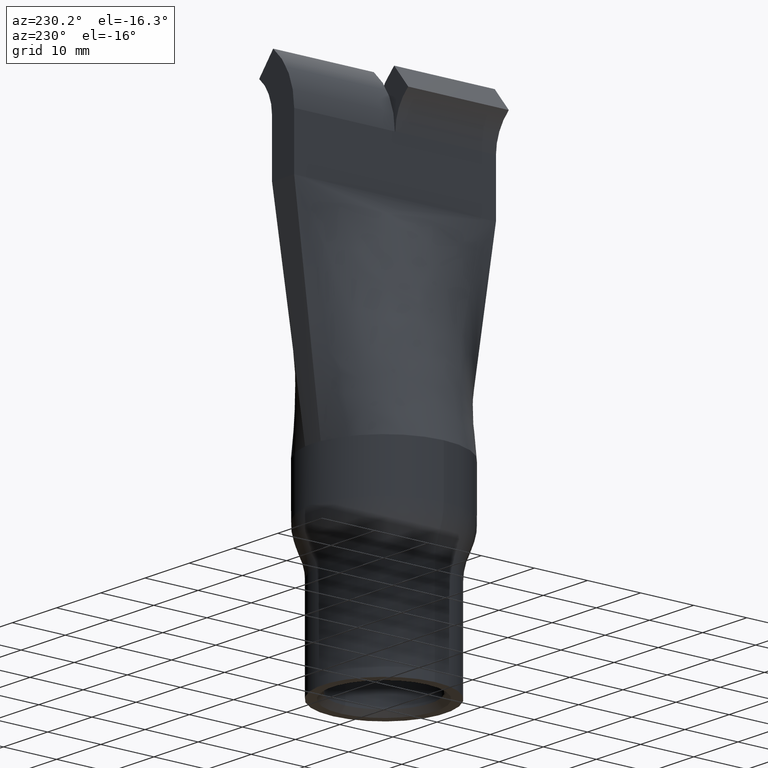
[diagram: clean part render]
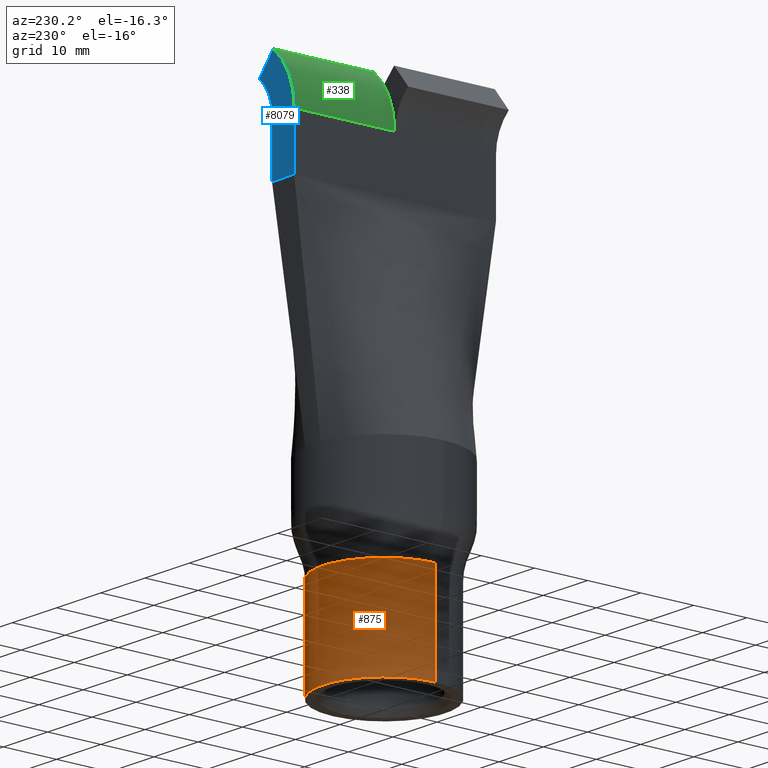
[diagram: same view with three faces highlighted in distinct colors, each labeled with its STEP entity id]
A machine part, auxiliary view with three faces highlighted in distinct colors.
Their STEP definitions:

[orange] entity #875 — the highlighted cylindrical surface (partial cylindrical patch) has radius 11.5 mm, axis along (-0, -0, -1).
#562 = CARTESIAN_POINT ( 'NONE',  ( 11.50000000000000000, 1.408343819019456200E-015, 0.0000000000000000000 ) ) ;
#875 = ADVANCED_FACE ( 'NONE', ( #7269 ), #3598, .T. ) ;
#1039 = CARTESIAN_POINT ( 'NONE',  ( -11.50000000000000000, 0.0000000000000000000, 0.0000000000000000000 ) ) ;
#1429 = VERTEX_POINT ( 'NONE', #1039 ) ;
#1825 = ORIENTED_EDGE ( 'NONE', *, *, #11472, .T. ) ;
#1852 = ORIENTED_EDGE ( 'NONE', *, *, #3597, .F. ) ;
#2644 = ORIENTED_EDGE ( 'NONE', *, *, #4210, .T. ) ;
#2754 = CARTESIAN_POINT ( 'NONE',  ( -11.50000000000000000, 0.0000000000000000000, 18.00000000000000000 ) ) ;
#2833 = DIRECTION ( 'NONE',  ( 0.0000000000000000000, 0.0000000000000000000, 1.000000000000000000 ) ) ;
#2884 = DIRECTION ( 'NONE',  ( 1.000000000000000000, 0.0000000000000000000, 0.0000000000000000000 ) ) ;
#2898 = CARTESIAN_POINT ( 'NONE',  ( 0.0000000000000000000, 0.0000000000000000000, 18.00000000000000000 ) ) ;
#3597 = EDGE_CURVE ( 'NONE', #5290, #1429, #13036, .T. ) ;
#3598 = CYLINDRICAL_SURFACE ( 'NONE', #13029, 11.50000000000000000 ) ;
#4210 = EDGE_CURVE ( 'NONE', #5290, #6960, #4705, .T. ) ;
#4429 = DIRECTION ( 'NONE',  ( -1.000000000000000000, 0.0000000000000000000, 0.0000000000000000000 ) ) ;
#4705 = CIRCLE ( 'NONE', #13056, 11.50000000000000000 ) ;
#5290 = VERTEX_POINT ( 'NONE', #2754 ) ;
#5613 = EDGE_LOOP ( 'NONE', ( #2644, #1825, #14954, #1852 ) ) ;
#6514 = DIRECTION ( 'NONE',  ( -0.0000000000000000000, -0.0000000000000000000, -1.000000000000000000 ) ) ;
#6681 = CARTESIAN_POINT ( 'NONE',  ( 0.0000000000000000000, 0.0000000000000000000, 24.00000000000000000 ) ) ;
#6960 = VERTEX_POINT ( 'NONE', #11894 ) ;
#7171 = CARTESIAN_POINT ( 'NONE',  ( 11.50000000000000000, 1.408343819019456200E-015, 24.00000000000000000 ) ) ;
#7269 = FACE_OUTER_BOUND ( 'NONE', #5613, .T. ) ;
#8472 = DIRECTION ( 'NONE',  ( -0.0000000000000000000, -0.0000000000000000000, -1.000000000000000000 ) ) ;
#8810 = VERTEX_POINT ( 'NONE', #562 ) ;
#9182 = DIRECTION ( 'NONE',  ( 1.000000000000000000, 0.0000000000000000000, 0.0000000000000000000 ) ) ;
#9630 = CARTESIAN_POINT ( 'NONE',  ( -11.50000000000000000, 0.0000000000000000000, 24.00000000000000000 ) ) ;
#9837 = DIRECTION ( 'NONE',  ( -0.0000000000000000000, -0.0000000000000000000, -1.000000000000000000 ) ) ;
#11472 = EDGE_CURVE ( 'NONE', #6960, #8810, #11603, .T. ) ;
#11553 = CARTESIAN_POINT ( 'NONE',  ( 0.0000000000000000000, 0.0000000000000000000, 0.0000000000000000000 ) ) ;
#11603 = LINE ( 'NONE', #7171, #12162 ) ;
#11673 = VECTOR ( 'NONE', #9837, 1000.000000000000000 ) ;
#11681 = EDGE_CURVE ( 'NONE', #8810, #1429, #12342, .T. ) ;
#11894 = CARTESIAN_POINT ( 'NONE',  ( 11.50000000000000000, 1.408343819019456200E-015, 18.00000000000000000 ) ) ;
#12162 = VECTOR ( 'NONE', #8472, 1000.000000000000000 ) ;
#12342 = CIRCLE ( 'NONE', #14536, 11.50000000000000000 ) ;
#12916 = DIRECTION ( 'NONE',  ( -0.0000000000000000000, -0.0000000000000000000, -1.000000000000000000 ) ) ;
#13029 = AXIS2_PLACEMENT_3D ( 'NONE', #6681, #12916, #4429 ) ;
#13036 = LINE ( 'NONE', #9630, #11673 ) ;
#13056 = AXIS2_PLACEMENT_3D ( 'NONE', #2898, #6514, #9182 ) ;
#14536 = AXIS2_PLACEMENT_3D ( 'NONE', #11553, #2833, #2884 ) ;
#14954 = ORIENTED_EDGE ( 'NONE', *, *, #11681, .T. ) ;

[blue] entity #8079 — the highlighted planar face has unit normal (0, -1, 0).
#72 = EDGE_CURVE ( 'NONE', #11219, #14656, #1862, .T. ) ;
#112 = CARTESIAN_POINT ( 'NONE',  ( 5.403782846609021600, 19.00000000000000400, 91.13189752409911600 ) ) ;
#271 = ORIENTED_EDGE ( 'NONE', *, *, #11660, .T. ) ;
#487 = CARTESIAN_POINT ( 'NONE',  ( 2.500000000000001800, 19.00000000000000400, 36.67246420652639200 ) ) ;
#1023 = DIRECTION ( 'NONE',  ( 1.000000000000000000, 0.0000000000000000000, 0.0000000000000000000 ) ) ;
#1305 = VERTEX_POINT ( 'NONE', #13048 ) ;
#1862 = LINE ( 'NONE', #10130, #11945 ) ;
#2151 = DIRECTION ( 'NONE',  ( 0.0000000000000000000, -1.000000000000000000, 0.0000000000000000000 ) ) ;
#2160 = CARTESIAN_POINT ( 'NONE',  ( -2.499999999999998200, 19.00000000000000400, 75.00000000000000000 ) ) ;
#2199 = AXIS2_PLACEMENT_3D ( 'NONE', #3343, #2151, #9555 ) ;
#2238 = ORIENTED_EDGE ( 'NONE', *, *, #14854, .F. ) ;
#2950 = LINE ( 'NONE', #2160, #9529 ) ;
#2966 = DIRECTION ( 'NONE',  ( -0.0000000000000000000, -0.0000000000000000000, 1.000000000000000000 ) ) ;
#3193 = EDGE_LOOP ( 'NONE', ( #15732, #6938, #11154, #2238, #4092, #271 ) ) ;
#3343 = CARTESIAN_POINT ( 'NONE',  ( -2.499999999999998200, 19.00000000000000400, 36.67246420652639200 ) ) ;
#3499 = VERTEX_POINT ( 'NONE', #112 ) ;
#4092 = ORIENTED_EDGE ( 'NONE', *, *, #7365, .F. ) ;
#4662 = DIRECTION ( 'NONE',  ( -0.6336490936431872200, 0.0000000000000000000, 0.7736205957219387500 ) ) ;
#5083 = LINE ( 'NONE', #487, #11106 ) ;
#5103 = AXIS2_PLACEMENT_3D ( 'NONE', #10284, #5258, #13913 ) ;
#5118 = VERTEX_POINT ( 'NONE', #7196 ) ;
#5258 = DIRECTION ( 'NONE',  ( -0.0000000000000000000, -1.000000000000000000, -0.0000000000000000000 ) ) ;
#5435 = DIRECTION ( 'NONE',  ( -0.0000000000000000000, -1.000000000000000000, -0.0000000000000000000 ) ) ;
#6038 = CIRCLE ( 'NONE', #14600, 12.92623355428751400 ) ;
#6562 = CARTESIAN_POINT ( 'NONE',  ( 2.500000000000001800, 19.00000000000000400, 74.99999999999998600 ) ) ;
#6938 = ORIENTED_EDGE ( 'NONE', *, *, #13895, .F. ) ;
#7196 = CARTESIAN_POINT ( 'NONE',  ( 2.235537378393083400, 19.00000000000000400, 95.00000050270881500 ) ) ;
#7365 = EDGE_CURVE ( 'NONE', #3499, #5118, #11068, .T. ) ;
#7650 = DIRECTION ( 'NONE',  ( -0.0000000000000000000, -0.0000000000000000000, 1.000000000000000000 ) ) ;
#8079 = ADVANCED_FACE ( 'NONE', ( #14151 ), #9501, .F. ) ;
#8166 = CARTESIAN_POINT ( 'NONE',  ( 3.819660112501045600, 19.00000000000000400, 93.06594901340396600 ) ) ;
#9501 = PLANE ( 'NONE',  #2199 ) ;
#9529 = VECTOR ( 'NONE', #1023, 1000.000000000000000 ) ;
#9555 = DIRECTION ( 'NONE',  ( 0.0000000000000000000, -0.0000000000000000000, -1.000000000000000000 ) ) ;
#10010 = CIRCLE ( 'NONE', #5103, 7.926233554287510000 ) ;
#10130 = CARTESIAN_POINT ( 'NONE',  ( -2.499999999999998200, 19.00000000000000400, 36.67246420652639200 ) ) ;
#10284 = CARTESIAN_POINT ( 'NONE',  ( 10.42623355428751500, 19.00000000000000400, 84.99999999999998600 ) ) ;
#10619 = CARTESIAN_POINT ( 'NONE',  ( -2.499999999999998200, 19.00000000000000400, 84.99999999999998600 ) ) ;
#11068 = LINE ( 'NONE', #8166, #12987 ) ;
#11106 = VECTOR ( 'NONE', #2966, 1000.000000000000000 ) ;
#11154 = ORIENTED_EDGE ( 'NONE', *, *, #72, .T. ) ;
#11219 = VERTEX_POINT ( 'NONE', #15604 ) ;
#11660 = EDGE_CURVE ( 'NONE', #3499, #1305, #10010, .T. ) ;
#11945 = VECTOR ( 'NONE', #7650, 1000.000000000000000 ) ;
#12852 = CARTESIAN_POINT ( 'NONE',  ( 10.42623355428751500, 19.00000000000000400, 84.99999999999998600 ) ) ;
#12987 = VECTOR ( 'NONE', #4662, 1000.000000000000100 ) ;
#13048 = CARTESIAN_POINT ( 'NONE',  ( 2.500000000000001800, 19.00000000000000400, 84.99999999999998600 ) ) ;
#13221 = EDGE_CURVE ( 'NONE', #14214, #1305, #5083, .T. ) ;
#13895 = EDGE_CURVE ( 'NONE', #11219, #14214, #2950, .T. ) ;
#13913 = DIRECTION ( 'NONE',  ( 0.0000000000000000000, 0.0000000000000000000, -1.000000000000000000 ) ) ;
#14098 = DIRECTION ( 'NONE',  ( 0.0000000000000000000, 0.0000000000000000000, -1.000000000000000000 ) ) ;
#14151 = FACE_OUTER_BOUND ( 'NONE', #3193, .T. ) ;
#14214 = VERTEX_POINT ( 'NONE', #6562 ) ;
#14600 = AXIS2_PLACEMENT_3D ( 'NONE', #12852, #5435, #14098 ) ;
#14656 = VERTEX_POINT ( 'NONE', #10619 ) ;
#14854 = EDGE_CURVE ( 'NONE', #5118, #14656, #6038, .T. ) ;
#15604 = CARTESIAN_POINT ( 'NONE',  ( -2.499999999999998200, 19.00000000000000400, 75.00000000000000000 ) ) ;
#15732 = ORIENTED_EDGE ( 'NONE', *, *, #13221, .F. ) ;

[green] entity #338 — the highlighted cylindrical surface (partial cylindrical patch) has radius 12.9262 mm, axis along (-0, -1, -0).
#129 = ORIENTED_EDGE ( 'NONE', *, *, #4190, .F. ) ;
#338 = ADVANCED_FACE ( 'NONE', ( #5721 ), #12676, .T. ) ;
#364 = DIRECTION ( 'NONE',  ( -7.231618146541204800E-017, -1.000000000000000000, 8.829064532223749700E-017 ) ) ;
#471 = CIRCLE ( 'NONE', #6812, 12.92623355428751400 ) ;
#1754 = DIRECTION ( 'NONE',  ( -1.141265444721583800E-016, -1.000000000000000000, 0.0000000000000000000 ) ) ;
#1851 = CARTESIAN_POINT ( 'NONE',  ( -2.500000000000000400, 2.853163611803959800E-016, 84.99999999999998600 ) ) ;
#2719 = EDGE_LOOP ( 'NONE', ( #14693, #129, #7655, #3785 ) ) ;
#2763 = EDGE_CURVE ( 'NONE', #5916, #13720, #471, .T. ) ;
#3195 = CARTESIAN_POINT ( 'NONE',  ( -2.500000000000000400, 0.05000000000000143200, 84.99999999999998600 ) ) ;
#3785 = ORIENTED_EDGE ( 'NONE', *, *, #8755, .T. ) ;
#4190 = EDGE_CURVE ( 'NONE', #5118, #5916, #8169, .T. ) ;
#4202 = CARTESIAN_POINT ( 'NONE',  ( 2.235537378393083400, 2.853163611803959800E-016, 95.00000050270881500 ) ) ;
#5118 = VERTEX_POINT ( 'NONE', #7196 ) ;
#5435 = DIRECTION ( 'NONE',  ( -0.0000000000000000000, -1.000000000000000000, -0.0000000000000000000 ) ) ;
#5555 = AXIS2_PLACEMENT_3D ( 'NONE', #7041, #10615, #8179 ) ;
#5721 = FACE_OUTER_BOUND ( 'NONE', #2719, .T. ) ;
#5827 = VECTOR ( 'NONE', #1754, 1000.000000000000000 ) ;
#5916 = VERTEX_POINT ( 'NONE', #6278 ) ;
#6038 = CIRCLE ( 'NONE', #14600, 12.92623355428751400 ) ;
#6278 = CARTESIAN_POINT ( 'NONE',  ( 2.235537378393083400, 0.05000000000000000300, 95.00000050270881500 ) ) ;
#6812 = AXIS2_PLACEMENT_3D ( 'NONE', #7124, #13351, #8318 ) ;
#7041 = CARTESIAN_POINT ( 'NONE',  ( 10.42623355428751500, 9.500000000000001800, 84.99999999999998600 ) ) ;
#7124 = CARTESIAN_POINT ( 'NONE',  ( 10.42623355428751500, 0.04999999999999969700, 84.99999999999998600 ) ) ;
#7196 = CARTESIAN_POINT ( 'NONE',  ( 2.235537378393083400, 19.00000000000000400, 95.00000050270881500 ) ) ;
#7655 = ORIENTED_EDGE ( 'NONE', *, *, #14854, .T. ) ;
#8169 = LINE ( 'NONE', #4202, #13783 ) ;
#8179 = DIRECTION ( 'NONE',  ( 0.0000000000000000000, 0.0000000000000000000, -1.000000000000000000 ) ) ;
#8318 = DIRECTION ( 'NONE',  ( 0.0000000000000000000, 0.0000000000000000000, -1.000000000000000000 ) ) ;
#8755 = EDGE_CURVE ( 'NONE', #14656, #13720, #9119, .T. ) ;
#9119 = LINE ( 'NONE', #1851, #5827 ) ;
#10615 = DIRECTION ( 'NONE',  ( -0.0000000000000000000, -1.000000000000000000, -0.0000000000000000000 ) ) ;
#10619 = CARTESIAN_POINT ( 'NONE',  ( -2.499999999999998200, 19.00000000000000400, 84.99999999999998600 ) ) ;
#12676 = CYLINDRICAL_SURFACE ( 'NONE', #5555, 12.92623355428751400 ) ;
#12852 = CARTESIAN_POINT ( 'NONE',  ( 10.42623355428751500, 19.00000000000000400, 84.99999999999998600 ) ) ;
#13351 = DIRECTION ( 'NONE',  ( -0.0000000000000000000, -1.000000000000000000, -0.0000000000000000000 ) ) ;
#13720 = VERTEX_POINT ( 'NONE', #3195 ) ;
#13783 = VECTOR ( 'NONE', #364, 1000.000000000000000 ) ;
#14098 = DIRECTION ( 'NONE',  ( 0.0000000000000000000, 0.0000000000000000000, -1.000000000000000000 ) ) ;
#14600 = AXIS2_PLACEMENT_3D ( 'NONE', #12852, #5435, #14098 ) ;
#14656 = VERTEX_POINT ( 'NONE', #10619 ) ;
#14693 = ORIENTED_EDGE ( 'NONE', *, *, #2763, .F. ) ;
#14854 = EDGE_CURVE ( 'NONE', #5118, #14656, #6038, .T. ) ;